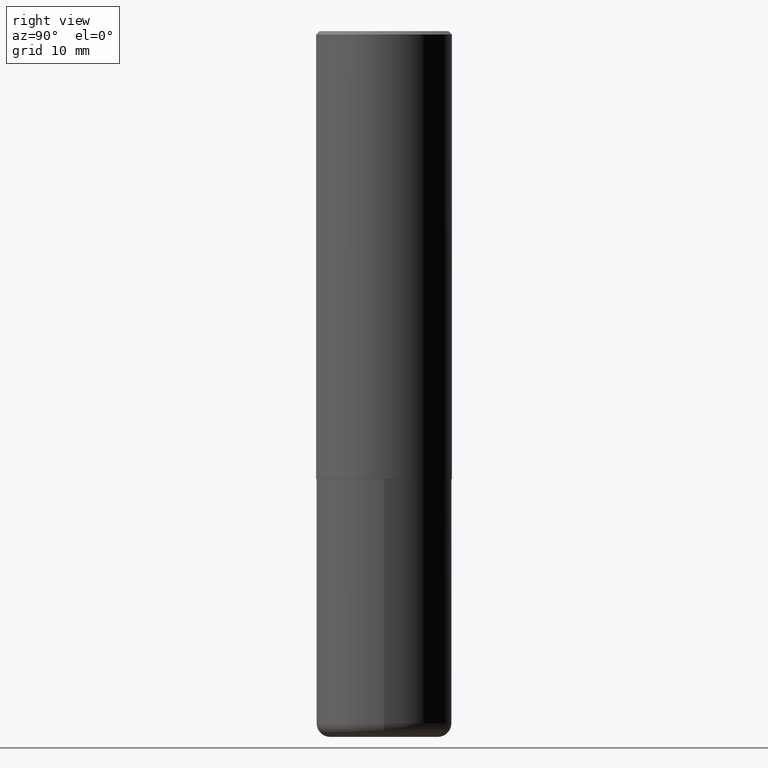
[diagram: clean part render]
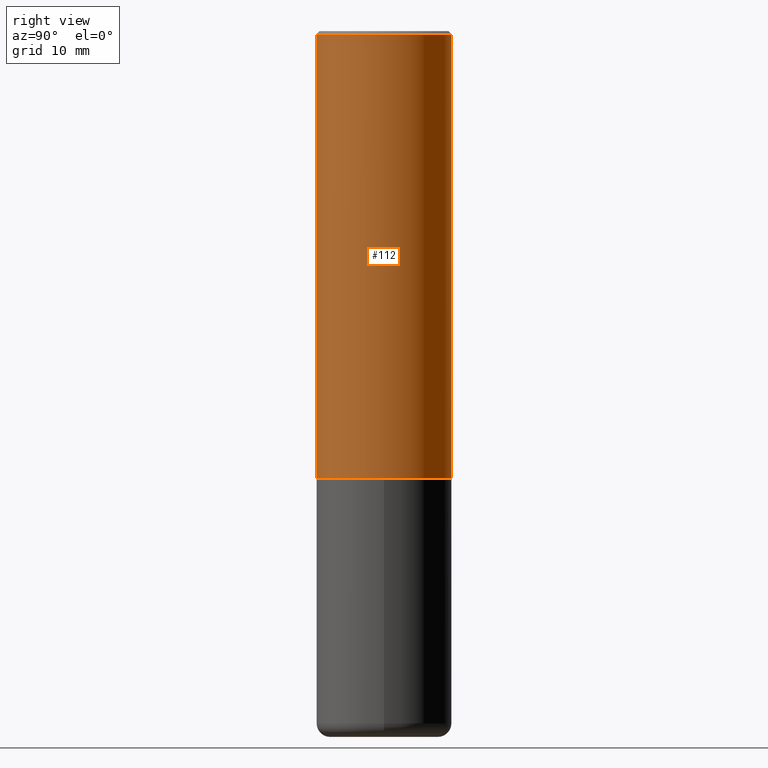
[diagram: same view with one face highlighted and labeled with its STEP entity id]
A machine part, right view. The second image highlights one B-rep face of the part: STEP entity #112.
In plain terms, the highlighted cylindrical surface (partial cylindrical patch) has radius 10 mm, axis along (-0, 0, 1).
Its self-contained STEP definition (entity closure, byte-faithful):
#3 = CARTESIAN_POINT ( 'NONE',  ( 2.797406750687547524E-15, 0.3936999999999912236, -2.597400000000002152 ) ) ;
#16 = CARTESIAN_POINT ( 'NONE',  ( 4.890117617617573732E-31, -6.984136956843418330E-17, -0.02000000000000008715 ) ) ;
#28 = CYLINDRICAL_SURFACE ( 'NONE', #203, 0.3937000000000001609 ) ;
#49 = VERTEX_POINT ( 'NONE', #390 ) ;
#77 = LINE ( 'NONE', #113, #377 ) ;
#78 = ORIENTED_EDGE ( 'NONE', *, *, #346, .T. ) ;
#89 = CARTESIAN_POINT ( 'NONE',  ( 2.749192406205083217E-15, 0.3936999999999999389, -0.02000000000000146105 ) ) ;
#91 = VERTEX_POINT ( 'NONE', #3 ) ;
#101 = VECTOR ( 'NONE', #184, 39.37007874015748143 ) ;
#106 = CARTESIAN_POINT ( 'NONE',  ( 6.350795749999916474E-29, -9.070298665852512644E-15, -2.597400000000000375 ) ) ;
#112 = ADVANCED_FACE ( 'NONE', ( #353 ), #28, .T. ) ;
#113 = CARTESIAN_POINT ( 'NONE',  ( 2.797406750687515181E-15, 0.3937000000000001609, -1.374827359954621742E-15 ) ) ;
#136 = DIRECTION ( 'NONE',  ( -2.445058808808776392E-29, 3.492068478421694670E-15, 1.000000000000000000 ) ) ;
#138 = DIRECTION ( 'NONE',  ( -2.445058808808776111E-29, 3.492068478421695064E-15, 1.000000000000000000 ) ) ;
#142 = DIRECTION ( 'NONE',  ( -2.445058808808776392E-29, 3.492068478421694670E-15, 1.000000000000000000 ) ) ;
#146 = VERTEX_POINT ( 'NONE', #89 ) ;
#147 = CARTESIAN_POINT ( 'NONE',  ( -2.700978061722651252E-15, -0.3937000000000001054, -0.01999999999999870978 ) ) ;
#184 = DIRECTION ( 'NONE',  ( -2.445058808808776111E-29, 3.492068478421695064E-15, 1.000000000000000000 ) ) ;
#203 = AXIS2_PLACEMENT_3D ( 'NONE', #256, #226, #291 ) ;
#216 = ORIENTED_EDGE ( 'NONE', *, *, #330, .F. ) ;
#220 = AXIS2_PLACEMENT_3D ( 'NONE', #16, #142, #238 ) ;
#224 = LINE ( 'NONE', #252, #101 ) ;
#226 = DIRECTION ( 'NONE',  ( -2.445058808808776392E-29, 3.492068478421694670E-15, 1.000000000000000000 ) ) ;
#238 = DIRECTION ( 'NONE',  ( -6.982962677686265133E-15, -1.000000000000000000, 3.491137977679279424E-15 ) ) ;
#242 = CIRCLE ( 'NONE', #220, 0.3937000000000000499 ) ;
#246 = CIRCLE ( 'NONE', #269, 0.3937000000000002720 ) ;
#252 = CARTESIAN_POINT ( 'NONE',  ( -2.749192406205084005E-15, -0.3937000000000001609, 1.374827359954621742E-15 ) ) ;
#256 = CARTESIAN_POINT ( 'NONE',  ( 0.000000000000000000, 0.000000000000000000, 0.000000000000000000 ) ) ;
#269 = AXIS2_PLACEMENT_3D ( 'NONE', #106, #136, #399 ) ;
#279 = EDGE_CURVE ( 'NONE', #49, #91, #246, .T. ) ;
#291 = DIRECTION ( 'NONE',  ( -6.982962677686265922E-15, -1.000000000000000000, 3.492068478421694670E-15 ) ) ;
#317 = ORIENTED_EDGE ( 'NONE', *, *, #407, .F. ) ;
#330 = EDGE_CURVE ( 'NONE', #379, #146, #242, .T. ) ;
#345 = ORIENTED_EDGE ( 'NONE', *, *, #279, .T. ) ;
#346 = EDGE_CURVE ( 'NONE', #91, #146, #77, .T. ) ;
#353 = FACE_OUTER_BOUND ( 'NONE', #376, .T. ) ;
#376 = EDGE_LOOP ( 'NONE', ( #345, #78, #216, #317 ) ) ;
#377 = VECTOR ( 'NONE', #138, 39.37007874015748143 ) ;
#379 = VERTEX_POINT ( 'NONE', #147 ) ;
#390 = CARTESIAN_POINT ( 'NONE',  ( -2.749192406205021291E-15, -0.3937000000000093758, -2.597399999999999043 ) ) ;
#399 = DIRECTION ( 'NONE',  ( -6.982962677686265922E-15, -1.000000000000000000, 4.163344669033672479E-15 ) ) ;
#407 = EDGE_CURVE ( 'NONE', #49, #379, #224, .T. ) ;